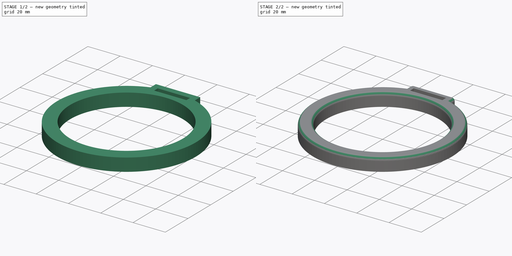
[diagram: build sequence overview — one tinted view per stage of 2, left to right]
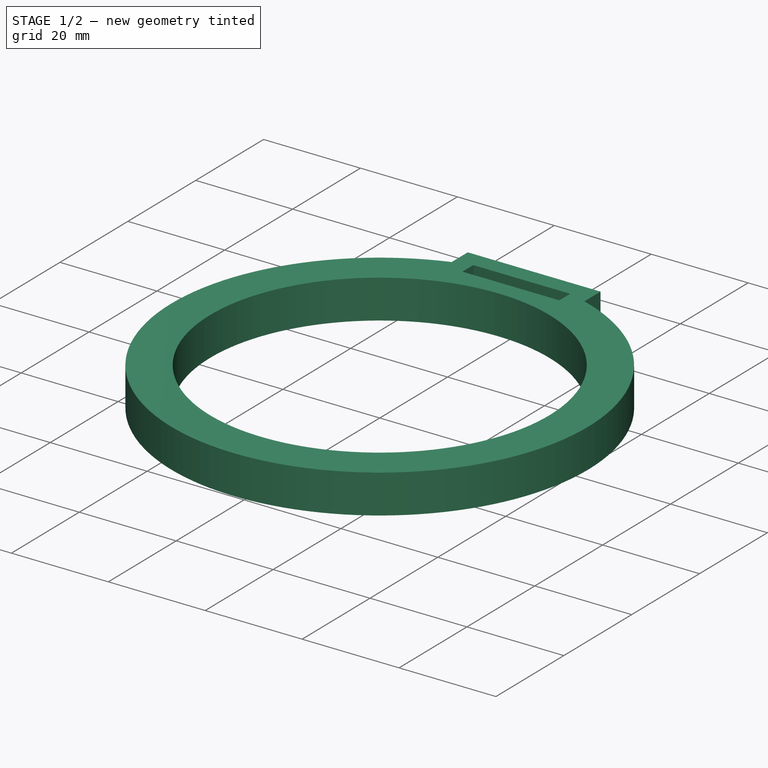
[diagram: stage 1 of 2 — iso view after this stage's code; geometry added in this stage tinted green]
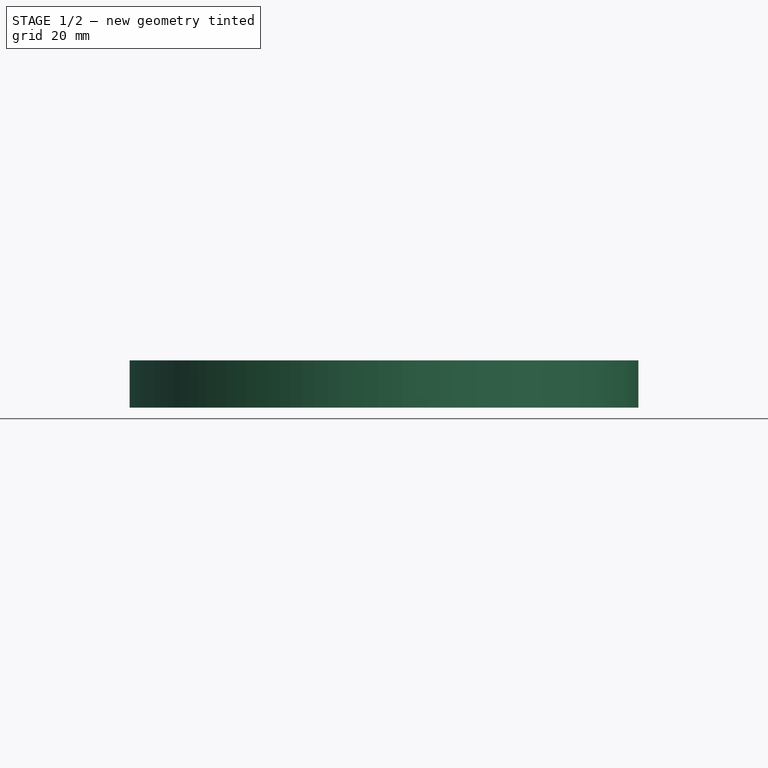
[diagram: stage 1 of 2 — front view after this stage's code; geometry added in this stage tinted green]
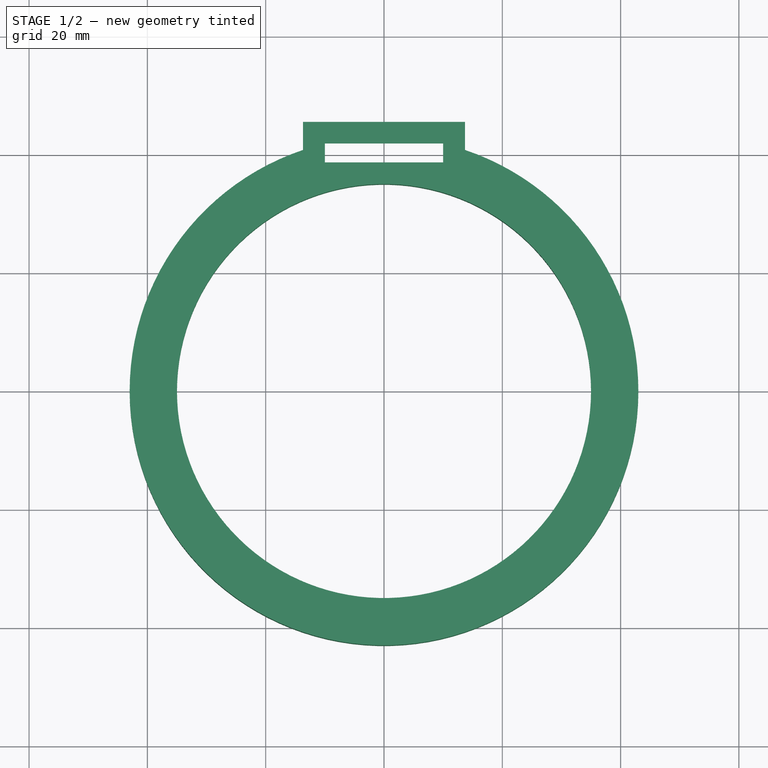
[diagram: stage 1 of 2 — top view after this stage's code; geometry added in this stage tinted green]
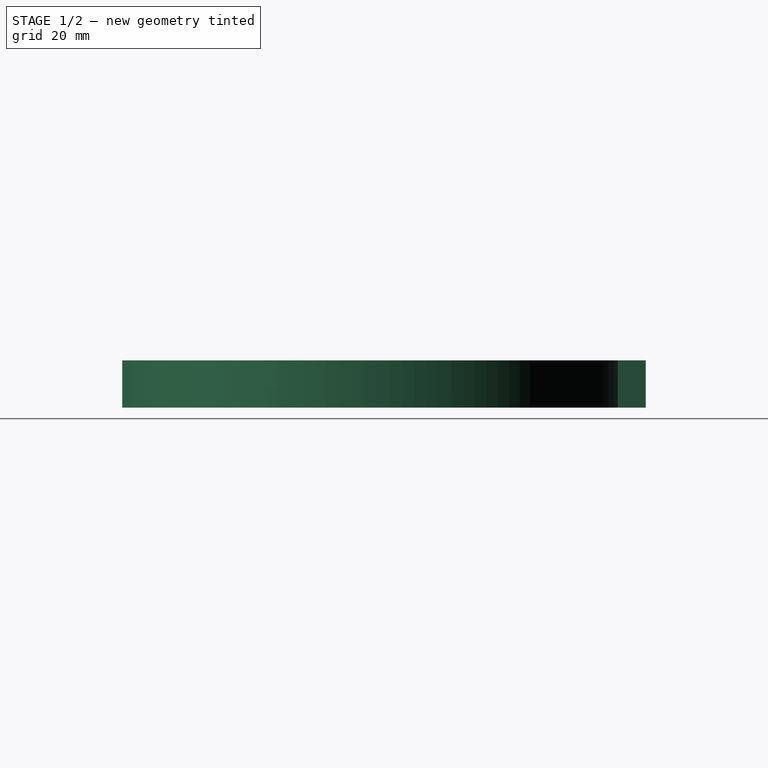
[diagram: stage 1 of 2 — right view after this stage's code; geometry added in this stage tinted green]
FCSTD DOCUMENT  (FreeCAD 0.18R16111 (Git))
Label: CupHolder-Stroller
License: All rights reserved
LicenseURL: http://en.wikipedia.org/wiki/All_rights_reserved
objects: Sketcher::SketchObject×3, Spreadsheet::Sheet×1, PartDesign::Pad×1, PartDesign::SubtractiveLoft×1, PartDesign::Fillet×1, PartDesign::Body×1
note: 9 computed .brp shape members not serialized (recipe doc carries the construction recipe); baked Part::Feature solids carry a one-line shape summary decoded from their .brp

FEATURE [Spreadsheet::Sheet] Spreadsheet
  cells = A1=holdHoleThickMax; B1(holdHoleThickMax)==holdHoleThickMin + 0.5mm; A2=holdHoleThickMin; B2(holdHoleThickMin)==3.2mm; A3=holdThick; B3(holdThick)==3.4mm; A4=holdHeight; B4(holdHeight)==13mm - 5mm; A5=holdWidth; B5(holdWidth)==20mm; A6=cupThick; B6(cupThick)==8mm; A7=cupHeight; B7(cupHeight)==holdHeight; A8=innerDiam; B8(innerDiam)==70mm
FEATURE [Sketcher::SketchObject] Sketch
  MapMode = 5
  Support = -> [XY_Plane]
  expr: Constraints[12] = Spreadsheet.innerDiam + 2 * Spreadsheet.cupThick
  expr: Constraints[8] = Spreadsheet.holdWidth + Spreadsheet.holdHoleThickMax * 2
  expr: Constraints[13] = Spreadsheet.innerDiam / 2 + Spreadsheet.holdHoleThickMax + Spreadsheet.holdThick * 2
  expr: Constraints[7] = Spreadsheet.innerDiam
  sketch-geometry (5):
    g0: Circle CenterX=0 CenterY=0 CenterZ=0 NormalX=0 NormalY=0 NormalZ=1 AngleXU=0 Radius=35
    g1: ArcOfCircle CenterX=0 CenterY=0 CenterZ=0 NormalX=0 NormalY=0 NormalZ=1 AngleXU=0 Radius=43 StartAngle=1.89505 EndAngle=7.52972
    g2: LineSegment StartX=-13.7 StartY=40.7592 StartZ=0 EndX=-13.7 EndY=45.5 EndZ=0
    g3: LineSegment StartX=-13.7 StartY=45.5 StartZ=0 EndX=13.7 EndY=45.5 EndZ=0
    g4: LineSegment StartX=13.7 StartY=45.5 StartZ=0 EndX=13.7 EndY=40.7592 EndZ=0
  constraints (14):
    c: Coincident(g2,g3)
    c: Coincident(g3,g4)
    c: Coincident(g4,g1)
    c: Vertical(g4)
    c: Horizontal(g3)
    c: Vertical(g2)
    c: Equal(g2,g4)
    c: Diameter(g0) = 70
    c: DistanceX(g3,g3) = 27.4
    c: Coincident(g2,g1)
    c: Coincident(g1,g0)
    c: Coincident(g0,g-1)
    c: Diameter(g1) = 86
    c: DistanceY(g0,g3) = 45.5
FEATURE [PartDesign::Pad] Pad
  Length = 8
  Length2 = 100
  Profile = -> Sketch
  Type = 0
  expr: Length = Spreadsheet.cupHeight
FEATURE [Sketcher::SketchObject] Sketch001
  ExternalGeometry = -> [Pad]
  MapMode = 5
  Support = -> [XY_Plane]
  expr: Constraints[11] = Spreadsheet.holdThick
  expr: Constraints[10] = Spreadsheet.holdHoleThickMax
  expr: Constraints[9] = Spreadsheet.holdHoleThickMax
  expr: Constraints[8] = Spreadsheet.holdHoleThickMax
  sketch-geometry (4):
    g0: LineSegment StartX=-10 StartY=42.1 StartZ=0 EndX=10 EndY=42.1 EndZ=0
    g1: LineSegment StartX=10 StartY=42.1 StartZ=0 EndX=10 EndY=38.4 EndZ=0
    g2: LineSegment StartX=10 StartY=38.4 StartZ=0 EndX=-10 EndY=38.4 EndZ=0
    g3: LineSegment StartX=-10 StartY=38.4 StartZ=0 EndX=-10 EndY=42.1 EndZ=0
  constraints (12):
    c: Coincident(g0,g1)
    c: Coincident(g1,g2)
    c: Coincident(g2,g3)
    c: Coincident(g3,g0)
    c: Horizontal(g0)
    c: Horizontal(g2)
    c: Vertical(g1)
    c: Vertical(g3)
    c: DistanceY(g1,g1) = 3.7
    c: DistanceX(g-3,g0) = 3.7
    c: DistanceX(g0,g-4) = 3.7
    c: DistanceY(g0,g-3) = 3.4
FEATURE [Sketcher::SketchObject] Sketch002
  ExternalGeometry = -> [Sketch001]
  MapMode = 5
  Placement = pos=(0,0,8) rot=(0,0,1;0rad)
  Support = -> [Pad]
  expr: Constraints[11] = -(Spreadsheet.holdHoleThickMax - Spreadsheet.holdHoleThickMin) / 2
  expr: Constraints[10] = Spreadsheet.holdHoleThickMin
  sketch-geometry (4):
    g0: LineSegment StartX=-10 StartY=41.85 StartZ=0 EndX=10 EndY=41.85 EndZ=0
    g1: LineSegment StartX=10 StartY=41.85 StartZ=0 EndX=10 EndY=38.65 EndZ=0
    g2: LineSegment StartX=10 StartY=38.65 StartZ=0 EndX=-10 EndY=38.65 EndZ=0
    g3: LineSegment StartX=-10 StartY=38.65 StartZ=0 EndX=-10 EndY=41.85 EndZ=0
  constraints (12):
    c: Coincident(g0,g1)
    c: Coincident(g1,g2)
    c: Coincident(g2,g3)
    c: Coincident(g3,g0)
    c: Horizontal(g0)
    c: Horizontal(g2)
    c: Vertical(g1)
    c: Vertical(g3)
    c: Vertical(g-3,g0)
    c: Vertical(g-3,g0)
    c: DistanceY(g1,g1) = 3.2
    c: DistanceY(g-3,g0) = -0.25
FEATURE [PartDesign::SubtractiveLoft] SubtractiveLoft
  BaseFeature = -> Pad
  Closed = false
  Profile = -> Sketch001
  Ruled = false
  Sections = -> [Sketch002]
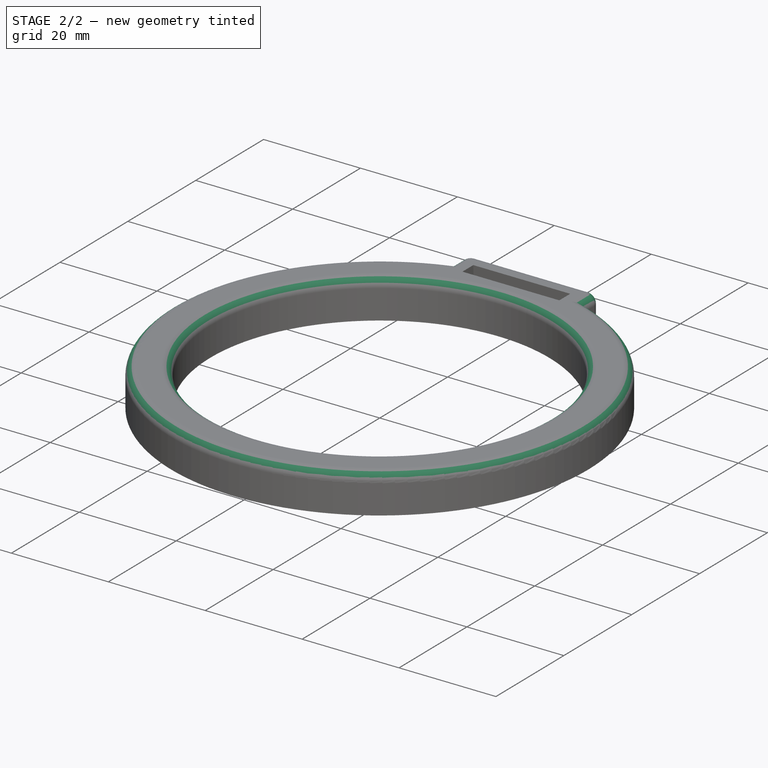
[diagram: stage 2 of 2 — iso view after this stage's code; geometry added in this stage tinted green]
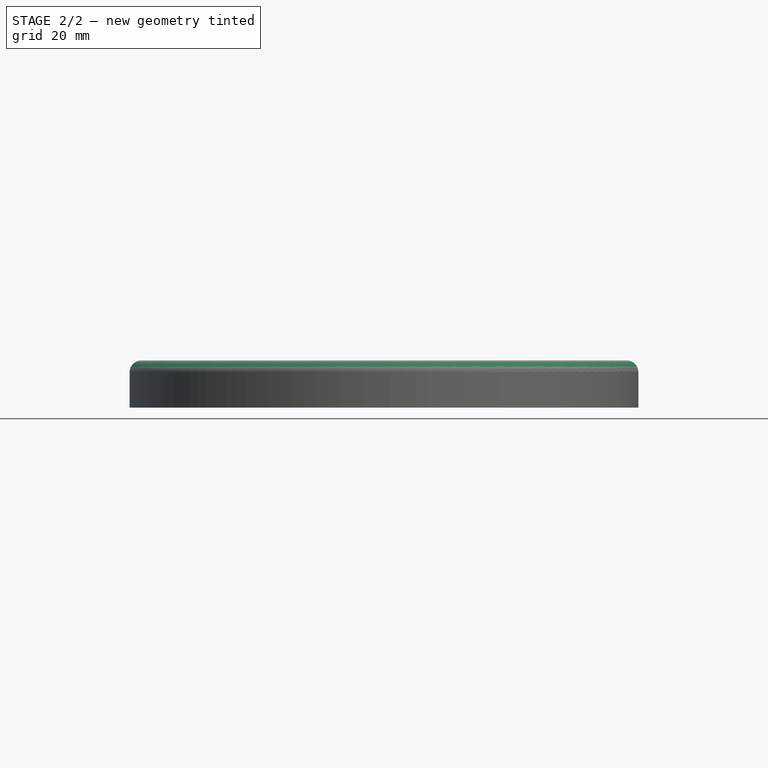
[diagram: stage 2 of 2 — front view after this stage's code; geometry added in this stage tinted green]
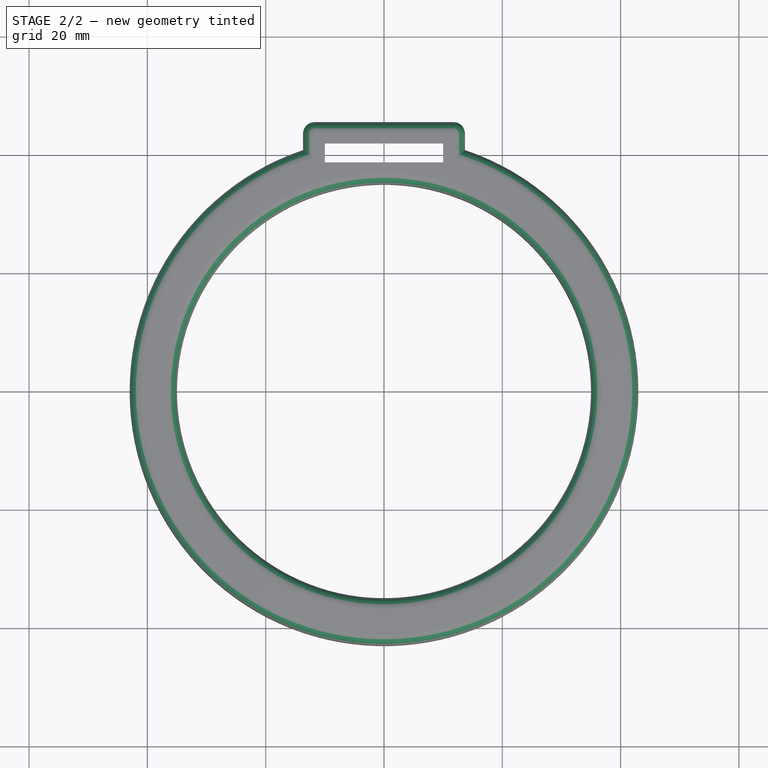
[diagram: stage 2 of 2 — top view after this stage's code; geometry added in this stage tinted green]
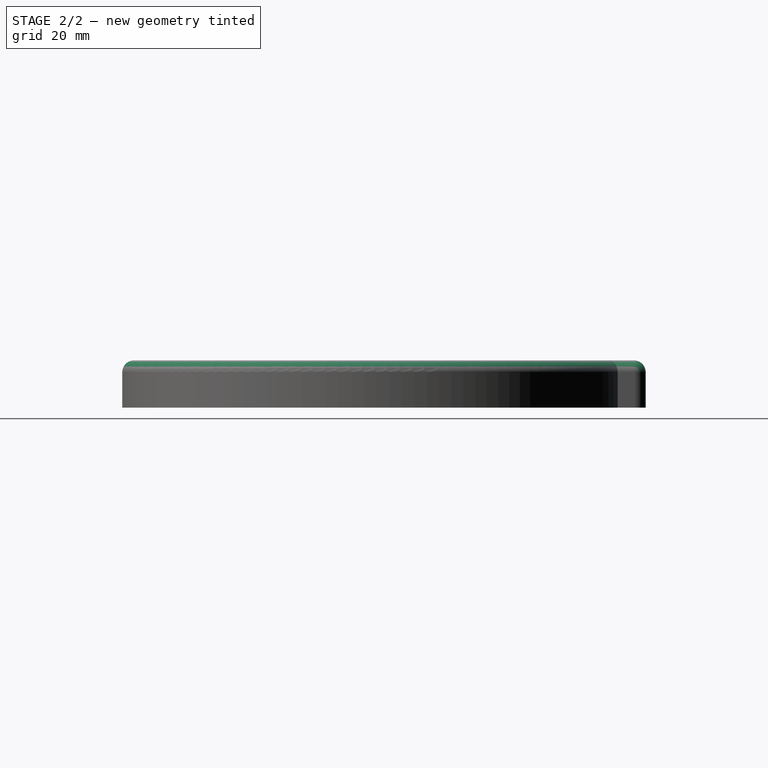
[diagram: stage 2 of 2 — right view after this stage's code; geometry added in this stage tinted green]
FEATURE [PartDesign::Fillet] Fillet
  Base = -> SubtractiveLoft [Edge18,Edge4,Edge7,Edge10,Edge5,Edge8,Edge17]
  BaseFeature = -> SubtractiveLoft
  Radius = 2
FEATURE [PartDesign::Body] Body
  Group = -> [Sketch,Pad,Sketch001,Sketch002,SubtractiveLoft,Fillet]
  Origin = -> Origin
  Tip = -> Fillet
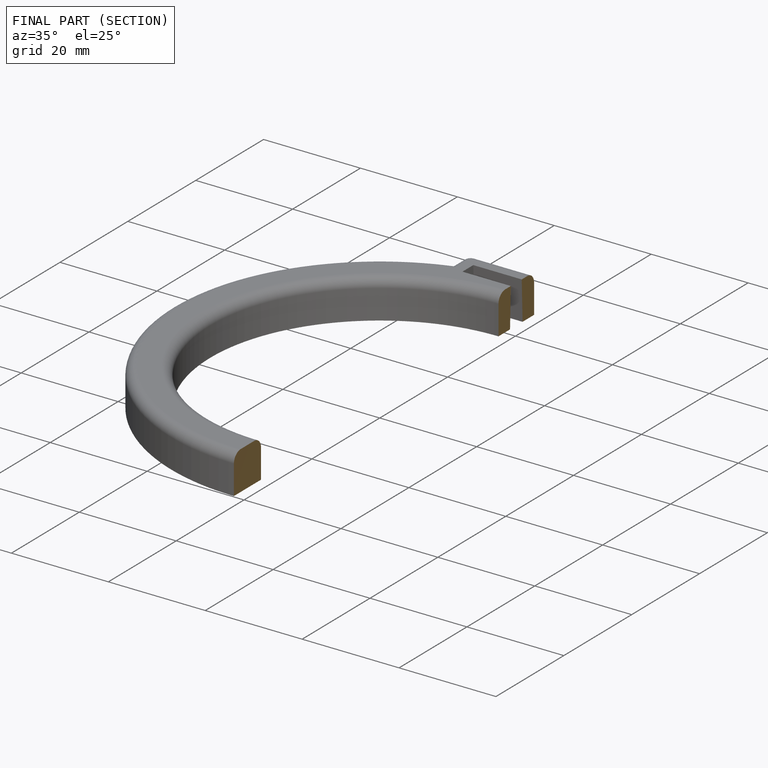
[diagram: finished part — half-section view (interior)]
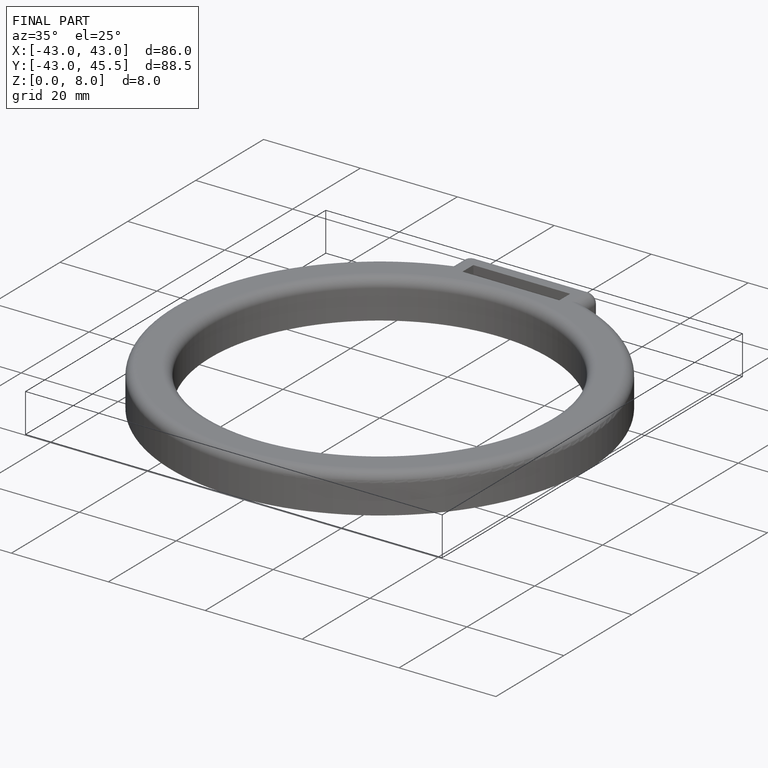
[diagram: finished part — iso view with bounding-box wireframe]
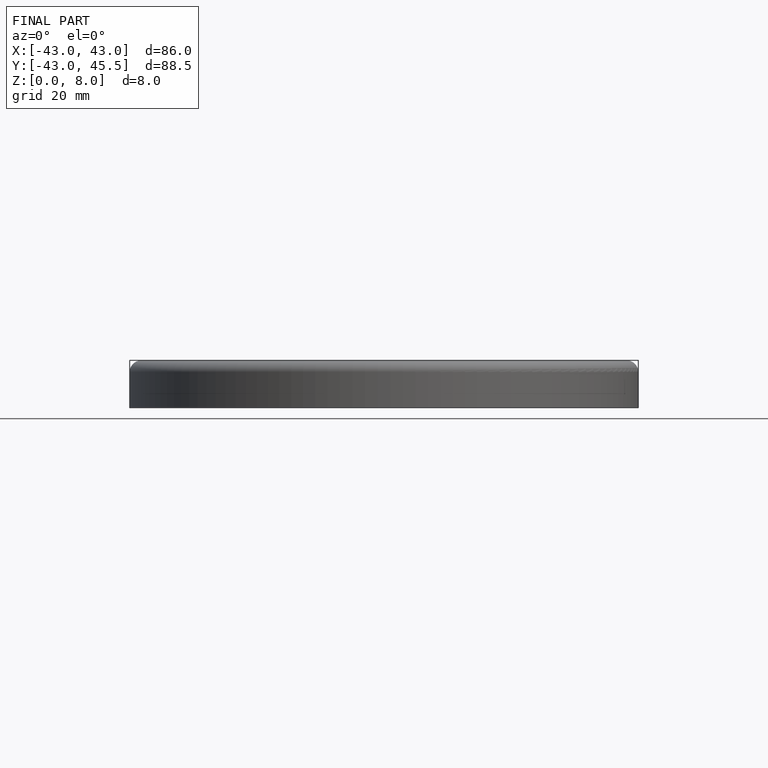
[diagram: finished part — front view with bounding-box wireframe]
